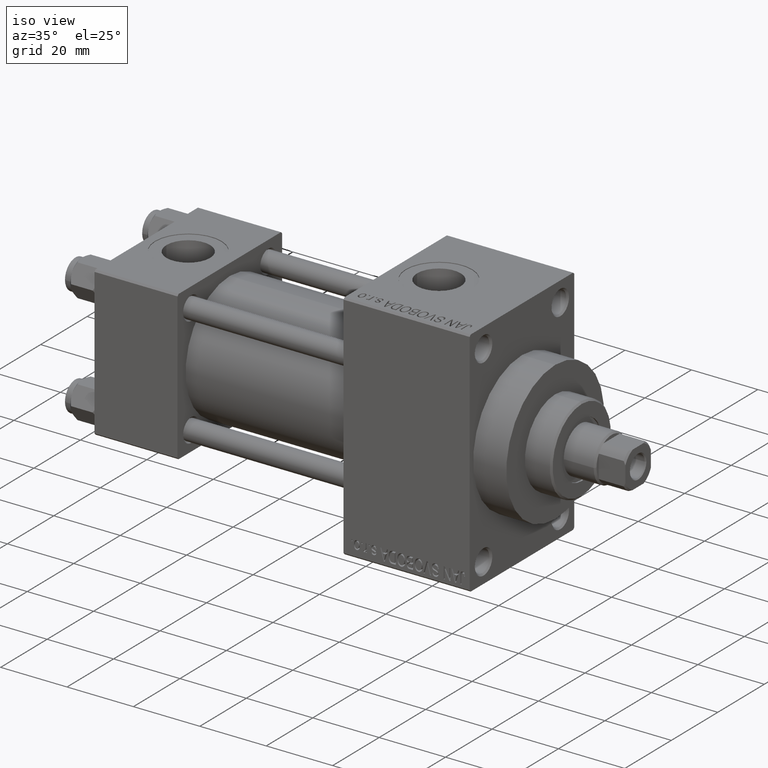
[diagram: clean part render]
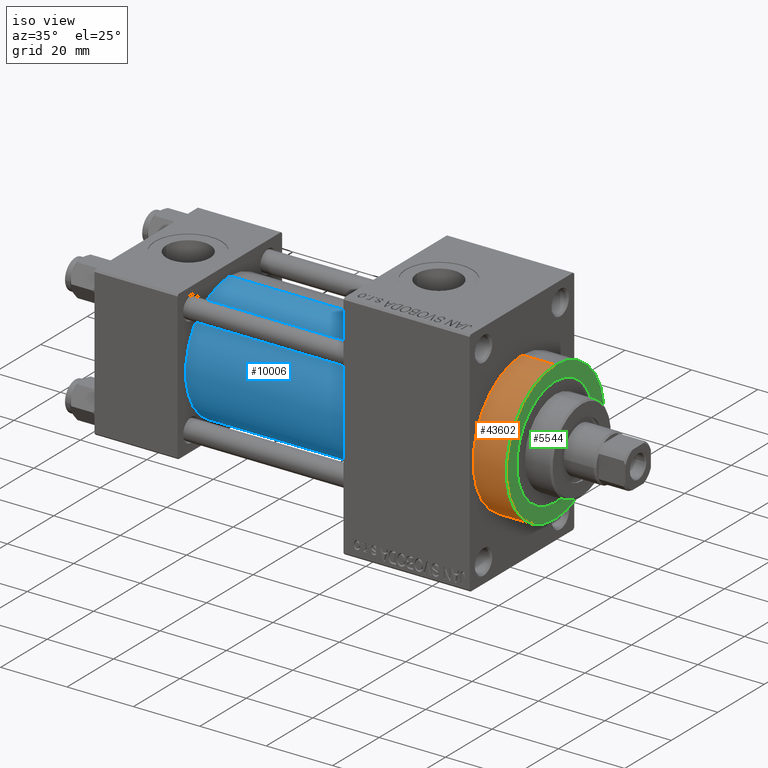
[diagram: same view with three faces highlighted in distinct colors, each labeled with its STEP entity id]
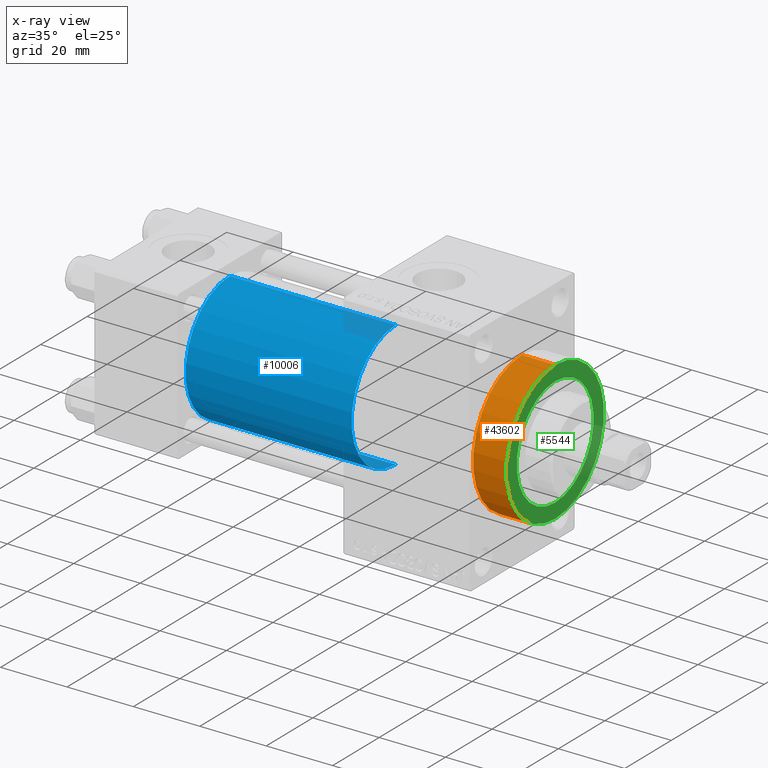
[diagram: x-ray of the same camera — body ghosted, the three highlighted faces saturated]
A machine part, iso view with three faces highlighted in distinct colors.
The next image is the same camera in x-ray (body ghosted, the three faces saturated) — at least one of them is partly hidden behind the body in this view.
Their STEP definitions:

[orange] entity #43602 — the highlighted cylindrical surface (partial cylindrical patch) has radius 21 mm, axis along (-1, -0, -0).
#1792 = CARTESIAN_POINT ( 'NONE',  ( 123.0000000000000142, 2.571758278209441661E-15, -21.00000000000000000 ) ) ;
#1828 = CARTESIAN_POINT ( 'NONE',  ( 113.0000000000000142, 2.571758278209441661E-15, -21.00000000000000000 ) ) ;
#3098 = VERTEX_POINT ( 'NONE', #14210 ) ;
#4078 = DIRECTION ( 'NONE',  ( 1.000000000000000000, 0.000000000000000000, 0.000000000000000000 ) ) ;
#4218 = VERTEX_POINT ( 'NONE', #1828 ) ;
#6724 = LINE ( 'NONE', #1792, #20523 ) ;
#6944 = DIRECTION ( 'NONE',  ( -1.000000000000000000, -0.000000000000000000, -0.000000000000000000 ) ) ;
#8717 = EDGE_CURVE ( 'NONE', #32658, #4218, #6724, .T. ) ;
#9470 = DIRECTION ( 'NONE',  ( -1.000000000000000000, -0.000000000000000000, -0.000000000000000000 ) ) ;
#10754 = CARTESIAN_POINT ( 'NONE',  ( 123.0000000000000142, 0.000000000000000000, 0.000000000000000000 ) ) ;
#13806 = AXIS2_PLACEMENT_3D ( 'NONE', #38099, #4078, #31107 ) ;
#14210 = CARTESIAN_POINT ( 'NONE',  ( 113.0000000000000142, 0.000000000000000000, 21.00000000000000000 ) ) ;
#14927 = DIRECTION ( 'NONE',  ( 0.000000000000000000, 0.000000000000000000, -1.000000000000000000 ) ) ;
#16480 = EDGE_LOOP ( 'NONE', ( #47933, #30703, #35131, #27496 ) ) ;
#18414 = DIRECTION ( 'NONE',  ( 1.000000000000000000, 0.000000000000000000, 0.000000000000000000 ) ) ;
#20389 = EDGE_CURVE ( 'NONE', #35120, #3098, #25566, .T. ) ;
#20513 = EDGE_CURVE ( 'NONE', #35120, #32658, #22538, .T. ) ;
#20523 = VECTOR ( 'NONE', #9470, 1000.000000000000000 ) ;
#21938 = CYLINDRICAL_SURFACE ( 'NONE', #33328, 21.00000000000000000 ) ;
#22538 = CIRCLE ( 'NONE', #13806, 21.00000000000000000 ) ;
#24414 = CARTESIAN_POINT ( 'NONE',  ( 123.0000000000000142, 0.000000000000000000, 21.00000000000000000 ) ) ;
#25327 = CARTESIAN_POINT ( 'NONE',  ( 123.0000000000000142, 0.000000000000000000, 21.00000000000000000 ) ) ;
#25566 = LINE ( 'NONE', #25327, #31252 ) ;
#27082 = CARTESIAN_POINT ( 'NONE',  ( 123.0000000000000142, 2.571758278209441661E-15, -21.00000000000000000 ) ) ;
#27496 = ORIENTED_EDGE ( 'NONE', *, *, #44607, .T. ) ;
#29087 = CARTESIAN_POINT ( 'NONE',  ( 113.0000000000000142, 0.000000000000000000, 0.000000000000000000 ) ) ;
#29144 = FACE_OUTER_BOUND ( 'NONE', #16480, .T. ) ;
#30703 = ORIENTED_EDGE ( 'NONE', *, *, #20513, .F. ) ;
#31107 = DIRECTION ( 'NONE',  ( 0.000000000000000000, 0.000000000000000000, -1.000000000000000000 ) ) ;
#31252 = VECTOR ( 'NONE', #6944, 1000.000000000000000 ) ;
#31772 = CIRCLE ( 'NONE', #38142, 21.00000000000000000 ) ;
#32658 = VERTEX_POINT ( 'NONE', #27082 ) ;
#33125 = DIRECTION ( 'NONE',  ( -1.000000000000000000, -0.000000000000000000, -0.000000000000000000 ) ) ;
#33328 = AXIS2_PLACEMENT_3D ( 'NONE', #10754, #33125, #41079 ) ;
#35120 = VERTEX_POINT ( 'NONE', #24414 ) ;
#35131 = ORIENTED_EDGE ( 'NONE', *, *, #20389, .T. ) ;
#38099 = CARTESIAN_POINT ( 'NONE',  ( 123.0000000000000142, 0.000000000000000000, 0.000000000000000000 ) ) ;
#38142 = AXIS2_PLACEMENT_3D ( 'NONE', #29087, #18414, #14927 ) ;
#41079 = DIRECTION ( 'NONE',  ( 0.000000000000000000, 0.000000000000000000, 1.000000000000000000 ) ) ;
#43602 = ADVANCED_FACE ( 'NONE', ( #29144 ), #21938, .T. ) ;
#44607 = EDGE_CURVE ( 'NONE', #3098, #4218, #31772, .T. ) ;
#47933 = ORIENTED_EDGE ( 'NONE', *, *, #8717, .F. ) ;

[blue] entity #10006 — the highlighted cylindrical surface (partial cylindrical patch) has radius 19 mm, axis along (-1, -0, -0).
#2353 = VECTOR ( 'NONE', #42097, 1000.000000000000000 ) ;
#2642 = DIRECTION ( 'NONE',  ( 0.000000000000000000, 0.000000000000000000, -1.000000000000000000 ) ) ;
#3549 = ORIENTED_EDGE ( 'NONE', *, *, #37405, .T. ) ;
#4096 = CARTESIAN_POINT ( 'NONE',  ( 75.00000000000001421, -2.602085213965210642E-15, 19.00000000000000000 ) ) ;
#8101 = CARTESIAN_POINT ( 'NONE',  ( 25.00000000000000000, -2.752562955852396712E-16, -19.00000000000000000 ) ) ;
#9513 = CARTESIAN_POINT ( 'NONE',  ( 75.00000000000001421, -2.752562955852396712E-16, -19.00000000000000000 ) ) ;
#10006 = ADVANCED_FACE ( 'NONE', ( #48883 ), #44663, .T. ) ;
#13241 = CIRCLE ( 'NONE', #33092, 19.00000000000000000 ) ;
#13941 = CARTESIAN_POINT ( 'NONE',  ( 25.00000000000000000, -2.602085213965210642E-15, 19.00000000000000000 ) ) ;
#14415 = VERTEX_POINT ( 'NONE', #4096 ) ;
#14847 = DIRECTION ( 'NONE',  ( 0.000000000000000000, 0.000000000000000000, 1.000000000000000000 ) ) ;
#15039 = AXIS2_PLACEMENT_3D ( 'NONE', #33980, #19315, #22541 ) ;
#16132 = VERTEX_POINT ( 'NONE', #9513 ) ;
#17940 = VERTEX_POINT ( 'NONE', #13941 ) ;
#19010 = AXIS2_PLACEMENT_3D ( 'NONE', #26014, #36741, #14847 ) ;
#19315 = DIRECTION ( 'NONE',  ( 1.000000000000000000, -0.000000000000000000, 0.000000000000000000 ) ) ;
#19485 = CARTESIAN_POINT ( 'NONE',  ( 75.00000000000001421, -2.602085213965210642E-15, 19.00000000000000000 ) ) ;
#22541 = DIRECTION ( 'NONE',  ( 0.000000000000000000, 0.000000000000000000, 1.000000000000000000 ) ) ;
#23291 = EDGE_CURVE ( 'NONE', #16132, #32860, #38333, .T. ) ;
#26014 = CARTESIAN_POINT ( 'NONE',  ( 75.00000000000001421, -2.602085213965210642E-15, 0.000000000000000000 ) ) ;
#26640 = DIRECTION ( 'NONE',  ( -1.000000000000000000, -0.000000000000000000, -0.000000000000000000 ) ) ;
#26879 = CARTESIAN_POINT ( 'NONE',  ( 75.00000000000001421, -2.752562955852396712E-16, -19.00000000000000000 ) ) ;
#28004 = EDGE_CURVE ( 'NONE', #14415, #16132, #13241, .T. ) ;
#28191 = ORIENTED_EDGE ( 'NONE', *, *, #37106, .T. ) ;
#30916 = CIRCLE ( 'NONE', #15039, 19.00000000000000000 ) ;
#32860 = VERTEX_POINT ( 'NONE', #8101 ) ;
#33092 = AXIS2_PLACEMENT_3D ( 'NONE', #48582, #44848, #2642 ) ;
#33980 = CARTESIAN_POINT ( 'NONE',  ( 25.00000000000000000, -2.602085213965210642E-15, 0.000000000000000000 ) ) ;
#36741 = DIRECTION ( 'NONE',  ( -1.000000000000000000, -0.000000000000000000, -0.000000000000000000 ) ) ;
#37106 = EDGE_CURVE ( 'NONE', #14415, #17940, #44107, .T. ) ;
#37405 = EDGE_CURVE ( 'NONE', #17940, #32860, #30916, .T. ) ;
#38333 = LINE ( 'NONE', #26879, #44836 ) ;
#42097 = DIRECTION ( 'NONE',  ( -1.000000000000000000, -0.000000000000000000, -0.000000000000000000 ) ) ;
#42688 = ORIENTED_EDGE ( 'NONE', *, *, #28004, .F. ) ;
#44107 = LINE ( 'NONE', #19485, #2353 ) ;
#44663 = CYLINDRICAL_SURFACE ( 'NONE', #19010, 19.00000000000000000 ) ;
#44836 = VECTOR ( 'NONE', #26640, 1000.000000000000000 ) ;
#44848 = DIRECTION ( 'NONE',  ( 1.000000000000000000, 0.000000000000000000, 0.000000000000000000 ) ) ;
#45750 = EDGE_LOOP ( 'NONE', ( #45888, #42688, #28191, #3549 ) ) ;
#45888 = ORIENTED_EDGE ( 'NONE', *, *, #23291, .F. ) ;
#48582 = CARTESIAN_POINT ( 'NONE',  ( 75.00000000000001421, -2.602085213965210642E-15, 0.000000000000000000 ) ) ;
#48883 = FACE_OUTER_BOUND ( 'NONE', #45750, .T. ) ;

[green] entity #5544 — the highlighted planar face has unit normal (1, 0, 0).
#558 = AXIS2_PLACEMENT_3D ( 'NONE', #38686, #7404, #22788 ) ;
#980 = FACE_BOUND ( 'NONE', #48852, .T. ) ;
#3742 = FACE_OUTER_BOUND ( 'NONE', #6298, .T. ) ;
#4078 = DIRECTION ( 'NONE',  ( 1.000000000000000000, 0.000000000000000000, 0.000000000000000000 ) ) ;
#5544 = ADVANCED_FACE ( 'NONE', ( #980, #3742 ), #34527, .T. ) ;
#6072 = CIRCLE ( 'NONE', #33850, 16.50000000000000000 ) ;
#6298 = EDGE_LOOP ( 'NONE', ( #17650, #19789 ) ) ;
#7404 = DIRECTION ( 'NONE',  ( 1.000000000000000000, 0.000000000000000000, 0.000000000000000000 ) ) ;
#7543 = VERTEX_POINT ( 'NONE', #44533 ) ;
#9575 = DIRECTION ( 'NONE',  ( 0.000000000000000000, 0.000000000000000000, -1.000000000000000000 ) ) ;
#9898 = AXIS2_PLACEMENT_3D ( 'NONE', #16896, #35794, #32047 ) ;
#13296 = VERTEX_POINT ( 'NONE', #35653 ) ;
#13806 = AXIS2_PLACEMENT_3D ( 'NONE', #38099, #4078, #31107 ) ;
#16896 = CARTESIAN_POINT ( 'NONE',  ( 123.0000000000000142, 0.000000000000000000, 0.000000000000000000 ) ) ;
#17650 = ORIENTED_EDGE ( 'NONE', *, *, #20513, .T. ) ;
#19789 = ORIENTED_EDGE ( 'NONE', *, *, #22792, .T. ) ;
#19858 = DIRECTION ( 'NONE',  ( 0.000000000000000000, 0.000000000000000000, -1.000000000000000000 ) ) ;
#20513 = EDGE_CURVE ( 'NONE', #35120, #32658, #22538, .T. ) ;
#21779 = CIRCLE ( 'NONE', #9898, 21.00000000000000000 ) ;
#22538 = CIRCLE ( 'NONE', #13806, 21.00000000000000000 ) ;
#22788 = DIRECTION ( 'NONE',  ( 0.000000000000000000, 0.000000000000000000, -1.000000000000000000 ) ) ;
#22792 = EDGE_CURVE ( 'NONE', #32658, #35120, #21779, .T. ) ;
#24414 = CARTESIAN_POINT ( 'NONE',  ( 123.0000000000000142, 0.000000000000000000, 21.00000000000000000 ) ) ;
#25969 = AXIS2_PLACEMENT_3D ( 'NONE', #34287, #45699, #19858 ) ;
#26888 = EDGE_CURVE ( 'NONE', #13296, #7543, #46541, .T. ) ;
#27082 = CARTESIAN_POINT ( 'NONE',  ( 123.0000000000000142, 2.571758278209441661E-15, -21.00000000000000000 ) ) ;
#30636 = EDGE_CURVE ( 'NONE', #7543, #13296, #6072, .T. ) ;
#31107 = DIRECTION ( 'NONE',  ( 0.000000000000000000, 0.000000000000000000, -1.000000000000000000 ) ) ;
#32047 = DIRECTION ( 'NONE',  ( 0.000000000000000000, 0.000000000000000000, -1.000000000000000000 ) ) ;
#32658 = VERTEX_POINT ( 'NONE', #27082 ) ;
#33850 = AXIS2_PLACEMENT_3D ( 'NONE', #36171, #39657, #9575 ) ;
#34287 = CARTESIAN_POINT ( 'NONE',  ( 123.0000000000000142, 0.000000000000000000, 0.000000000000000000 ) ) ;
#34527 = PLANE ( 'NONE',  #25969 ) ;
#35120 = VERTEX_POINT ( 'NONE', #24414 ) ;
#35653 = CARTESIAN_POINT ( 'NONE',  ( 123.0000000000000142, 2.020667218593133100E-15, 16.50000000000000000 ) ) ;
#35794 = DIRECTION ( 'NONE',  ( 1.000000000000000000, 0.000000000000000000, 0.000000000000000000 ) ) ;
#36171 = CARTESIAN_POINT ( 'NONE',  ( 123.0000000000000142, 0.000000000000000000, 0.000000000000000000 ) ) ;
#38099 = CARTESIAN_POINT ( 'NONE',  ( 123.0000000000000142, 0.000000000000000000, 0.000000000000000000 ) ) ;
#38686 = CARTESIAN_POINT ( 'NONE',  ( 123.0000000000000142, 0.000000000000000000, 0.000000000000000000 ) ) ;
#39657 = DIRECTION ( 'NONE',  ( 1.000000000000000000, 0.000000000000000000, 0.000000000000000000 ) ) ;
#44533 = CARTESIAN_POINT ( 'NONE',  ( 123.0000000000000142, 0.000000000000000000, -16.50000000000000000 ) ) ;
#45699 = DIRECTION ( 'NONE',  ( 1.000000000000000000, 0.000000000000000000, 0.000000000000000000 ) ) ;
#46541 = CIRCLE ( 'NONE', #558, 16.50000000000000000 ) ;
#47505 = ORIENTED_EDGE ( 'NONE', *, *, #30636, .F. ) ;
#48554 = ORIENTED_EDGE ( 'NONE', *, *, #26888, .F. ) ;
#48852 = EDGE_LOOP ( 'NONE', ( #47505, #48554 ) ) ;